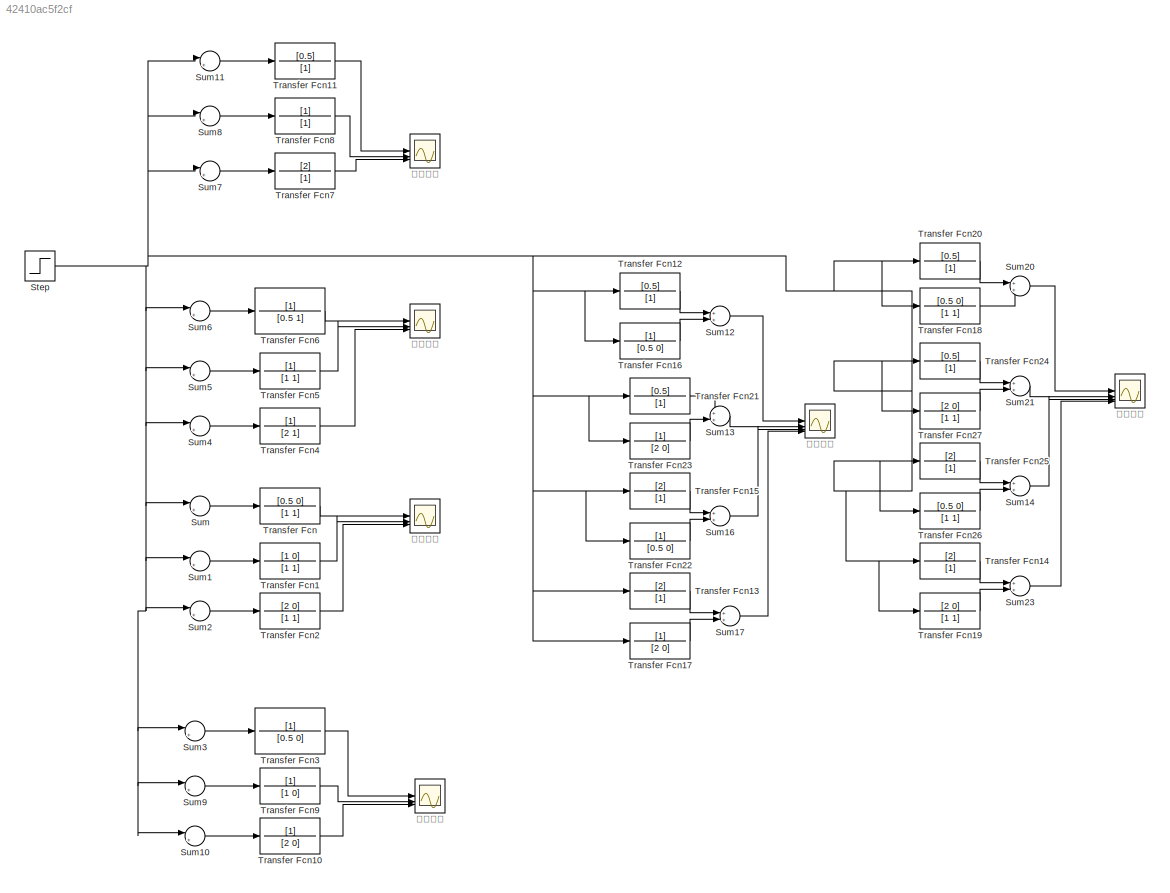
MODEL slx_42410ac5f2cf
KIND model
CONFIG AbsTol = auto
CONFIG EnableMultiTasking = off
CONFIG FixedStep = auto
CONFIG MaxStep = auto
CONFIG MinStep = auto
CONFIG RelTol = 1e-3
CONFIG SampleTimeConstraint = Unconstrained
CONFIG SolverName = VariableStepAuto
CONFIG StartTime = 0.0
CONFIG StopTime = 10.0
BLOCK [Step] Step
  SampleTime = 0
BLOCK [Sum] Sum
  Inputs = |+-
BLOCK [Sum] Sum1
  Inputs = |+-
BLOCK [Sum] Sum10
  Inputs = |+-
BLOCK [Sum] Sum11
  Inputs = |+-
BLOCK [Sum] Sum12
BLOCK [Sum] Sum13
BLOCK [Sum] Sum14
BLOCK [Sum] Sum16
BLOCK [Sum] Sum17
BLOCK [Sum] Sum2
  Inputs = |+-
BLOCK [Sum] Sum20
BLOCK [Sum] Sum21
BLOCK [Sum] Sum23
BLOCK [Sum] Sum3
  Inputs = |+-
BLOCK [Sum] Sum4
  Inputs = |+-
BLOCK [Sum] Sum5
  Inputs = |+-
BLOCK [Sum] Sum6
  Inputs = |+-
BLOCK [Sum] Sum7
  Inputs = |+-
BLOCK [Sum] Sum8
  Inputs = |+-
BLOCK [Sum] Sum9
  Inputs = |+-
BLOCK [TransferFcn] Transfer Fcn
  Denominator = [1 1]
  Numerator = [0.5 0]
BLOCK [TransferFcn] Transfer Fcn1
  Denominator = [1 1]
  Numerator = [1 0]
BLOCK [TransferFcn] Transfer Fcn10
  Denominator = [2 0]
BLOCK [TransferFcn] Transfer Fcn11
  Denominator = [1]
  Numerator = [0.5]
BLOCK [TransferFcn] Transfer Fcn12
  Denominator = [1]
  Numerator = [0.5]
BLOCK [TransferFcn] Transfer Fcn13
  Denominator = [1]
  Numerator = [2]
BLOCK [TransferFcn] Transfer Fcn14
  Denominator = [1]
  Numerator = [2]
BLOCK [TransferFcn] Transfer Fcn15
  Denominator = [1]
  Numerator = [2]
BLOCK [TransferFcn] Transfer Fcn16
  Denominator = [0.5 0]
BLOCK [TransferFcn] Transfer Fcn17
  Denominator = [2 0]
BLOCK [TransferFcn] Transfer Fcn18
  Denominator = [1 1]
  Numerator = [0.5 0]
BLOCK [TransferFcn] Transfer Fcn19
  Denominator = [1 1]
  Numerator = [2 0]
BLOCK [TransferFcn] Transfer Fcn2
  Denominator = [1 1]
  Numerator = [2 0]
BLOCK [TransferFcn] Transfer Fcn20
  Denominator = [1]
  Numerator = [0.5]
BLOCK [TransferFcn] Transfer Fcn21
  Denominator = [1]
  Numerator = [0.5]
BLOCK [TransferFcn] Transfer Fcn22
  Denominator = [0.5 0]
BLOCK [TransferFcn] Transfer Fcn23
  Denominator = [2 0]
BLOCK [TransferFcn] Transfer Fcn24
  Denominator = [1]
  Numerator = [0.5]
BLOCK [TransferFcn] Transfer Fcn25
  Denominator = [1]
  Numerator = [2]
BLOCK [TransferFcn] Transfer Fcn26
  Denominator = [1 1]
  Numerator = [0.5 0]
BLOCK [TransferFcn] Transfer Fcn27
  Denominator = [1 1]
  Numerator = [2 0]
BLOCK [TransferFcn] Transfer Fcn3
  Denominator = [0.5 0]
BLOCK [TransferFcn] Transfer Fcn4
  Denominator = [2 1]
BLOCK [TransferFcn] Transfer Fcn5
  Denominator = [1 1]
BLOCK [TransferFcn] Transfer Fcn6
  Denominator = [0.5 1]
BLOCK [TransferFcn] Transfer Fcn7
  Denominator = [1]
  Numerator = [2]
BLOCK [TransferFcn] Transfer Fcn8
  Denominator = [1]
BLOCK [TransferFcn] Transfer Fcn9
  Denominator = [1 0]
BLOCK [Scope] 微分环节
  Floating = off
  NumInputPorts = 3
  ScopeSpecificationString = Simulink.scopes.TimeScopeBlockCfg('CurrentConfiguration', extmgr.ConfigurationSet(extmgr.Configuration('Core','General UI',true,'FigureColor',[0 0 0]),extmgr.Configuration('Core','Source UI',true),extmgr.Configuration('Sources','WiredSimulink',true,'DataLoggingVariableName','ScopeData1','SampleTime','0.01'),extmgr.Configuration('Visuals','Time Domain',true,'SerializedDisplays',{struct('MinYLimReal...<+1613ch>
BLOCK [Scope] 惯性环节
  Floating = off
  NumInputPorts = 3
  ScopeSpecificationString = Simulink.scopes.TimeScopeBlockCfg('CurrentConfiguration', extmgr.ConfigurationSet(extmgr.Configuration('Core','General UI',true,'FigureColor',[0 0 0]),extmgr.Configuration('Core','Source UI',true),extmgr.Configuration('Sources','WiredSimulink',true,'DataLoggingVariableName','ScopeData2','SampleTime','0.01'),extmgr.Configuration('Visuals','Time Domain',true,'SerializedDisplays',{struct('MinYLimReal...<+1615ch>
BLOCK [Scope] 比例微分
  Floating = off
  NumInputPorts = 4
  ScopeSpecificationString = Simulink.scopes.TimeScopeBlockCfg('CurrentConfiguration', extmgr.ConfigurationSet(extmgr.Configuration('Core','General UI',true,'FigureColor',[0 0 0]),extmgr.Configuration('Core','Source UI',true),extmgr.Configuration('Sources','WiredSimulink',true,'DataLoggingVariableName','ScopeData3','SampleTime','0.01'),extmgr.Configuration('Visuals','Time Domain',true,'SerializedDisplays',{struct('MinYLimReal...<+1716ch>
BLOCK [Scope] 比例环节
  Floating = off
  NumInputPorts = 3
  ScopeSpecificationString = Simulink.scopes.TimeScopeBlockCfg('CurrentConfiguration', extmgr.ConfigurationSet(extmgr.Configuration('Core','General UI',true,'FigureColor',[0 0 0]),extmgr.Configuration('Core','Source UI',true),extmgr.Configuration('Sources','WiredSimulink',true,'DataLoggingVariableName','ScopeData4','SampleTime','0.01'),extmgr.Configuration('Visuals','Time Domain',true,'SerializedDisplays',{struct('MinYLimReal...<+1612ch>
BLOCK [Scope] 比例积分
  Floating = off
  NumInputPorts = 4
  ScopeSpecificationString = Simulink.scopes.TimeScopeBlockCfg('CurrentConfiguration', extmgr.ConfigurationSet(extmgr.Configuration('Core','General UI',true,'FigureColor',[0 0 0]),extmgr.Configuration('Core','Source UI',true),extmgr.Configuration('Sources','WiredSimulink',true,'DataLoggingVariableName','ScopeData5','SampleTime','0.01'),extmgr.Configuration('Visuals','Time Domain',true,'SerializedDisplays',{struct('MinYLimReal...<+1745ch>
BLOCK [Scope] 积分环节
  Floating = off
  NumInputPorts = 3
  ScopeSpecificationString = Simulink.scopes.TimeScopeBlockCfg('CurrentConfiguration', extmgr.ConfigurationSet(extmgr.Configuration('Core','General UI',true,'FigureColor',[0 0 0]),extmgr.Configuration('Core','Source UI',true),extmgr.Configuration('Sources','WiredSimulink',true,'SampleTime','0.01'),extmgr.Configuration('Visuals','Time Domain',true,'SerializedDisplays',{struct('MinYLimReal','-2.25','MaxYLimReal','20.25','YLabel...<+1579ch>
NET Step:1 -> Sum10:1, Sum11:1, Sum1:1, Sum2:1, Sum3:1, Sum4:1, Sum5:1, Sum6:1, Sum7:1, Sum8:1, Sum9:1, Sum:1, Transfer Fcn12:1, Transfer Fcn13:1, Transfer Fcn14:1, Transfer Fcn15:1, Transfer Fcn16:1, Transfer Fcn17:1, Transfer Fcn18:1, Transfer Fcn19:1, Transfer Fcn20:1, Transfer Fcn21:1, Transfer Fcn22:1, Transfer Fcn23:1, Transfer Fcn24:1, Transfer Fcn25:1, Transfer Fcn26:1, Transfer Fcn27:1
LINE Sum10:1 -> Transfer Fcn10:1
LINE Sum11:1 -> Transfer Fcn11:1
LINE Sum12:1 -> 比例积分:1
LINE Sum13:1 -> 比例积分:2
LINE Sum14:1 -> 比例微分:3
LINE Sum16:1 -> 比例积分:3
LINE Sum17:1 -> 比例积分:4
LINE Sum1:1 -> Transfer Fcn1:1
LINE Sum20:1 -> 比例微分:1
LINE Sum21:1 -> 比例微分:2
LINE Sum23:1 -> 比例微分:4
LINE Sum2:1 -> Transfer Fcn2:1
LINE Sum3:1 -> Transfer Fcn3:1
LINE Sum4:1 -> Transfer Fcn4:1
LINE Sum5:1 -> Transfer Fcn5:1
LINE Sum6:1 -> Transfer Fcn6:1
LINE Sum7:1 -> Transfer Fcn7:1
LINE Sum8:1 -> Transfer Fcn8:1
LINE Sum9:1 -> Transfer Fcn9:1
LINE Sum:1 -> Transfer Fcn:1
LINE Transfer Fcn10:1 -> 积分环节:3
LINE Transfer Fcn11:1 -> 比例环节:1
LINE Transfer Fcn12:1 -> Sum12:1
LINE Transfer Fcn13:1 -> Sum17:1
LINE Transfer Fcn14:1 -> Sum23:1
LINE Transfer Fcn15:1 -> Sum16:1
LINE Transfer Fcn16:1 -> Sum12:2
LINE Transfer Fcn17:1 -> Sum17:2
LINE Transfer Fcn18:1 -> Sum20:2
LINE Transfer Fcn19:1 -> Sum23:2
LINE Transfer Fcn1:1 -> 微分环节:2
LINE Transfer Fcn20:1 -> Sum20:1
LINE Transfer Fcn21:1 -> Sum13:1
LINE Transfer Fcn22:1 -> Sum16:2
LINE Transfer Fcn23:1 -> Sum13:2
LINE Transfer Fcn24:1 -> Sum21:1
LINE Transfer Fcn25:1 -> Sum14:1
LINE Transfer Fcn26:1 -> Sum14:2
LINE Transfer Fcn27:1 -> Sum21:2
LINE Transfer Fcn2:1 -> 微分环节:3
LINE Transfer Fcn3:1 -> 积分环节:1
LINE Transfer Fcn4:1 -> 惯性环节:3
LINE Transfer Fcn5:1 -> 惯性环节:2
LINE Transfer Fcn6:1 -> 惯性环节:1
LINE Transfer Fcn7:1 -> 比例环节:3
LINE Transfer Fcn8:1 -> 比例环节:2
LINE Transfer Fcn9:1 -> 积分环节:2
LINE Transfer Fcn:1 -> 微分环节:1
note: NET lines group one-source signal fan-out (src -> all destinations, sorted); 1:1 wires keep LINE
